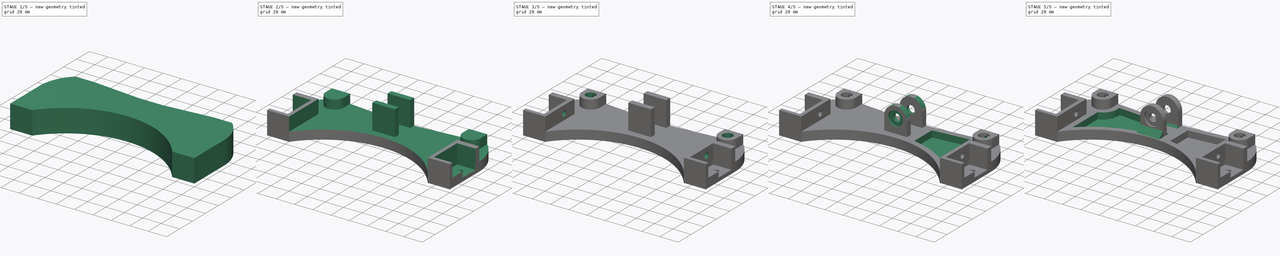
[diagram: build sequence overview — one tinted view per stage of 5, left to right]
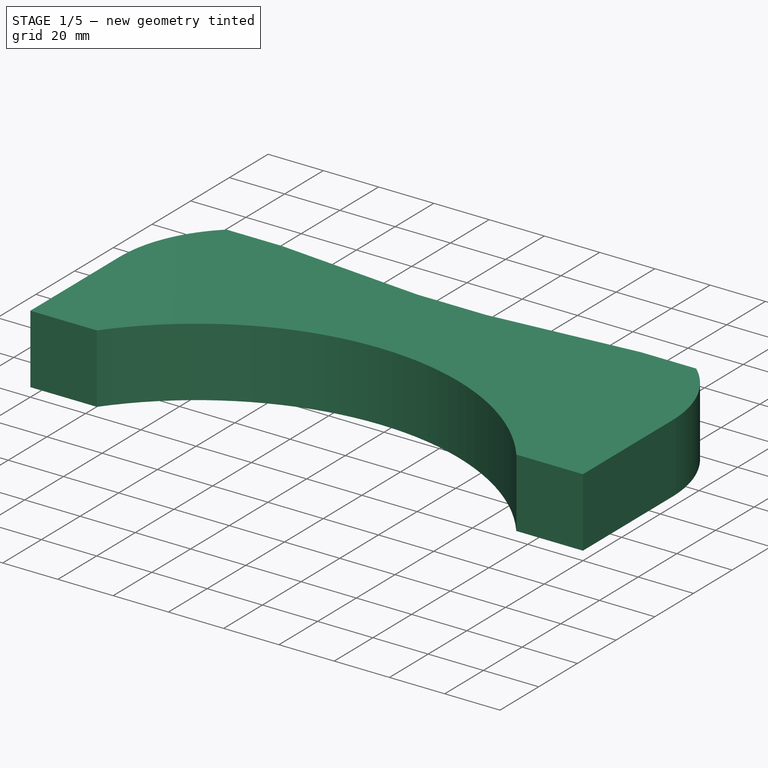
[diagram: stage 1 of 5 — iso view after this stage's code; geometry added in this stage tinted green]
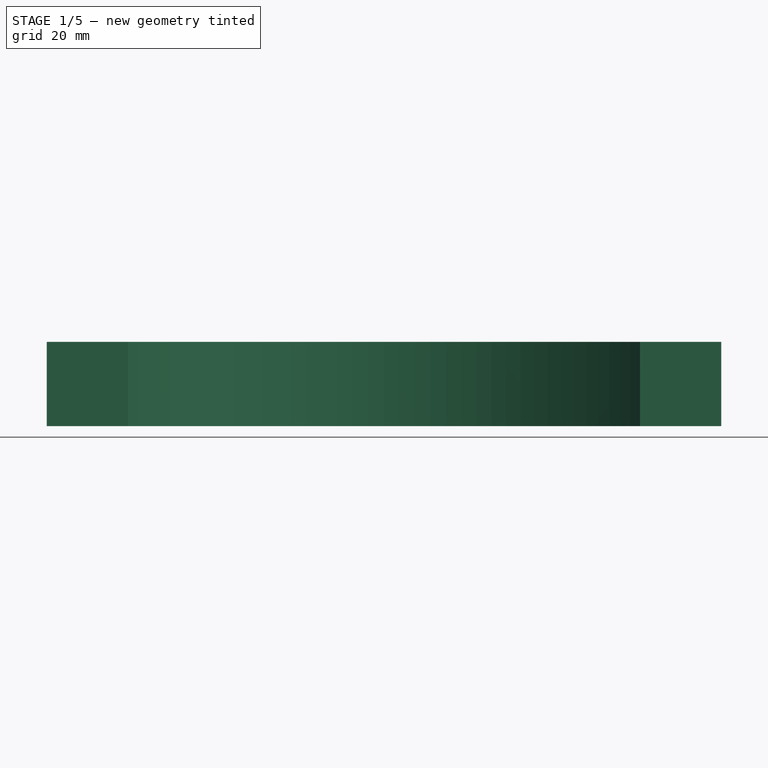
[diagram: stage 1 of 5 — front view after this stage's code; geometry added in this stage tinted green]
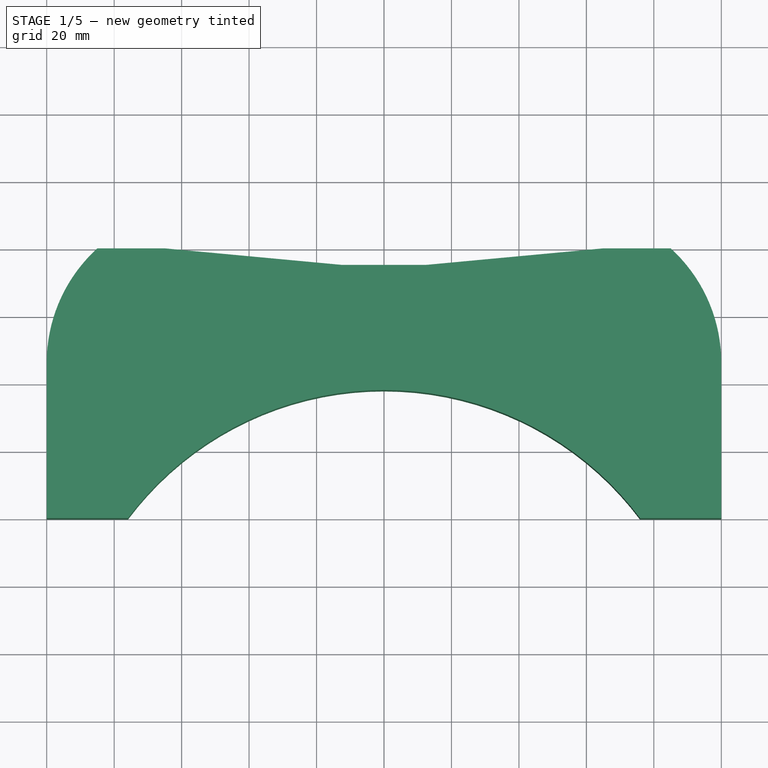
[diagram: stage 1 of 5 — top view after this stage's code; geometry added in this stage tinted green]
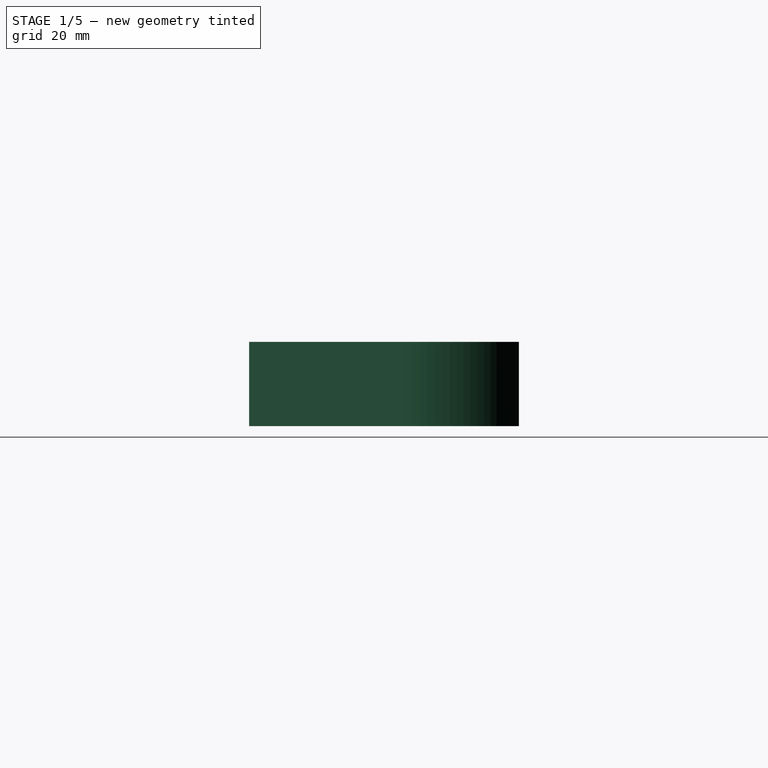
[diagram: stage 1 of 5 — right view after this stage's code; geometry added in this stage tinted green]
FCSTD DOCUMENT
Label: Y_Bearing-4mmoffset
objects: Sketcher::SketchObject×18, PartDesign::Pocket×16, PartDesign::Mirrored×7, PartDesign::Pad×2, PartDesign::Chamfer×2, Part::Feature×1
note: 64 computed .brp shape members not serialized (recipe doc carries the construction recipe); baked Part::Feature solids carry a one-line shape summary decoded from their .brp

FEATURE [Sketcher::SketchObject] Sketch
  sketch-geometry (5):
    g0: LineSegment StartX=-100 StartY=0 StartZ=0 EndX=100 EndY=0 EndZ=0
    g1: LineSegment StartX=100 StartY=0 StartZ=0 EndX=100 EndY=80 EndZ=0
    g2: LineSegment StartX=100 StartY=80 StartZ=0 EndX=-100 EndY=80 EndZ=0
    g3: LineSegment StartX=-100 StartY=80 StartZ=0 EndX=-100 EndY=0 EndZ=0
    g4: GeomPoint [constr] X=0 Y=0 Z=0
  constraints (12):
    c: Coincident(g0,g1)
    c: Coincident(g1,g2)
    c: Coincident(g2,g3)
    c: Coincident(g3,g0)
    c: Horizontal(g0)
    c: Horizontal(g2)
    c: Vertical(g1)
    c: Vertical(g3)
    c: DistanceX(g0) = 200
    c: DistanceY(g1) = 80
    c: Symmetric(g0,g0,g4)
    c: Coincident(g4,g-1)
FEATURE [PartDesign::Pad] Pad
  Length = 25
  Length2 = 100
  Sketch = -> Sketch
  Type = 0
FEATURE [Sketcher::SketchObject] Sketch001
  ExternalGeometry = -> [Pad]
  Placement = pos=(0,0,25) rot=(0,0,1;0rad)
  Support = -> Pad [Face6]
  sketch-geometry (3):
    g0: ArcOfCircle CenterX=0 CenterY=-56.8001 CenterZ=0 NormalX=0 NormalY=0 NormalZ=1 Radius=94.8001 StartAngle=0.642447 EndAngle=2.49915
    g1: LineSegment StartX=-75.9 StartY=0 StartZ=0 EndX=75.9 EndY=0 EndZ=0
    g2: LineSegment [constr] StartX=0 StartY=38 StartZ=0 EndX=0 EndY=0 EndZ=0
  constraints (10):
    c: PointOnObject(g0,g-2)
    c: Coincident(g1,g0)
    c: Coincident(g1,g0)
    c: Horizontal(g1)
    c: PointOnObject(g0,g-3)
    c: PointOnObject(g2,g0)
    c: Coincident(g2,g-1)
    c: Vertical(g2)
    c: DistanceY(g2) = -38
    c: DistanceX(g0,g-3) = -24.1
FEATURE [PartDesign::Pocket] Pocket
  Length = 5
  Sketch = -> Sketch001
  Type = 1
FEATURE [Sketcher::SketchObject] Sketch002
  ExternalGeometry = -> [Pocket]
  Placement = pos=(0,0,25) rot=(0,0,1;0rad)
  Support = -> Pocket [Face5]
  sketch-geometry (3):
    g0: ArcOfCircle CenterX=54.1931 CenterY=46.1 CenterZ=0 NormalX=0 NormalY=0 NormalZ=1 Radius=45.8069 StartAngle=6.28318 EndAngle=7.11635
    g1: LineSegment StartX=85 StartY=80 StartZ=0 EndX=100 EndY=80 EndZ=0
    g2: LineSegment StartX=100 StartY=80 StartZ=0 EndX=100 EndY=46.1 EndZ=0
  constraints (9):
    c: Coincident(g0,g1)
    c: Coincident(g1,g2)
    c: Coincident(g2,g0)
    c: Vertical(g2)
    c: Tangent(g2,g0)
    c: Horizontal(g1)
    c: DistanceX(g1) = 15
    c: Coincident(g1,g-3)
    c: DistanceY(g0,g-3) = -46.1
FEATURE [PartDesign::Pocket] Pocket001
  Length = 25
  Sketch = -> Sketch002
  Type = 0
FEATURE [PartDesign::Mirrored] Mirrored
  Originals = -> [Pocket001]
  StdMirrorPlane = YZ
FEATURE [Sketcher::SketchObject] Sketch003
  ExternalGeometry = -> [Mirrored]
  Placement = pos=(0,0,25) rot=(0,0,1;0rad)
  Support = -> Mirrored [Face4]
  sketch-geometry (4):
    g0: LineSegment StartX=-65 StartY=80 StartZ=0 EndX=-12.45 EndY=75.1 EndZ=0
    g1: LineSegment StartX=-12.45 StartY=75.1 StartZ=0 EndX=12.45 EndY=75.1 EndZ=0
    g2: LineSegment StartX=12.45 StartY=75.1 StartZ=0 EndX=65 EndY=80 EndZ=0
    g3: LineSegment StartX=65 StartY=80 StartZ=0 EndX=-65 EndY=80 EndZ=0
  constraints (12):
    c: Coincident(g0,g1)
    c: Horizontal(g1)
    c: Coincident(g1,g2)
    c: Coincident(g2,g3)
    c: Coincident(g3,g0)
    c: Horizontal(g3)
    c: Equal(g0,g2)
    c: PointOnObject(g0,g-3)
    c: Symmetric(g1,g0,g-2)
    c: DistanceY(g0,g0) = 4.9
    c: DistanceX(g1) = 24.9
    c: DistanceX(g2,g-3) = 20
FEATURE [PartDesign::Pocket] Pocket002
  Length = 5
  Sketch = -> Sketch003
  Type = 1
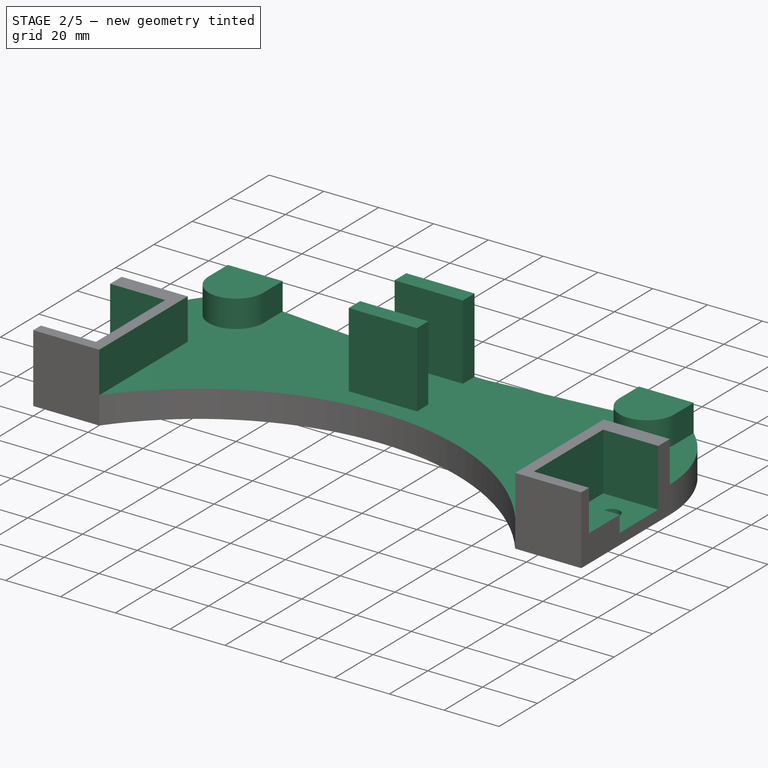
[diagram: stage 2 of 5 — iso view after this stage's code; geometry added in this stage tinted green]
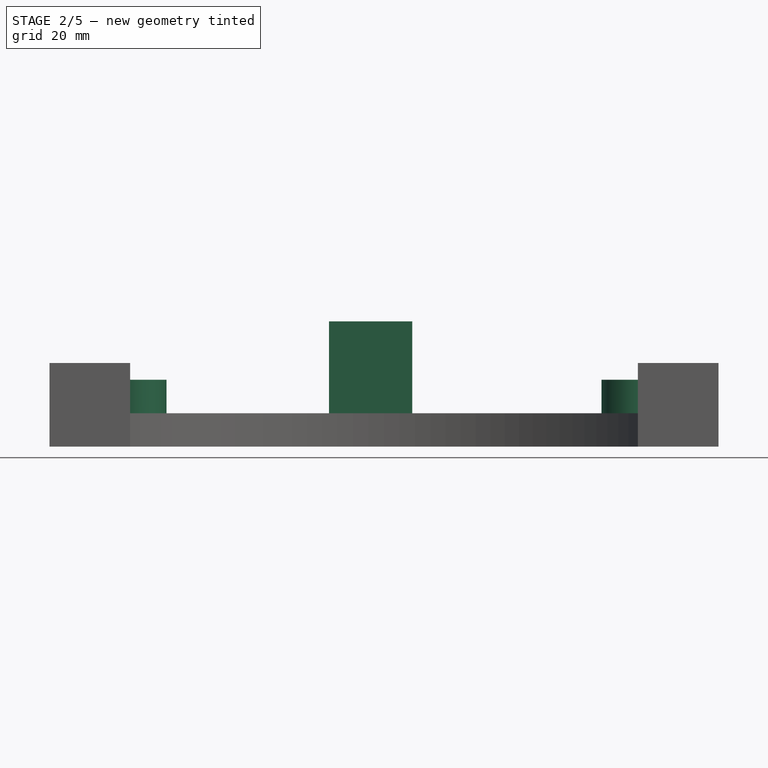
[diagram: stage 2 of 5 — front view after this stage's code; geometry added in this stage tinted green]
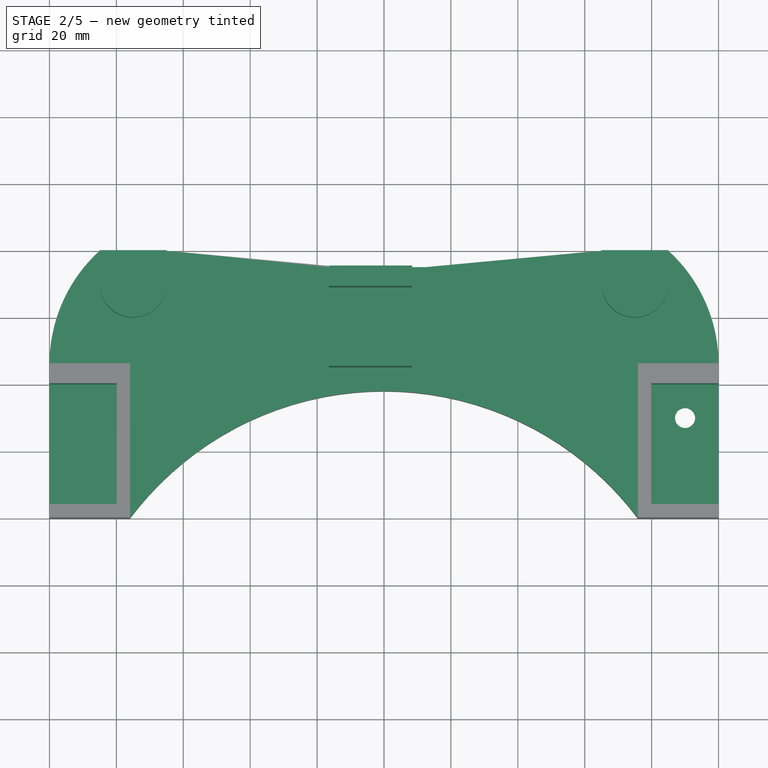
[diagram: stage 2 of 5 — top view after this stage's code; geometry added in this stage tinted green]
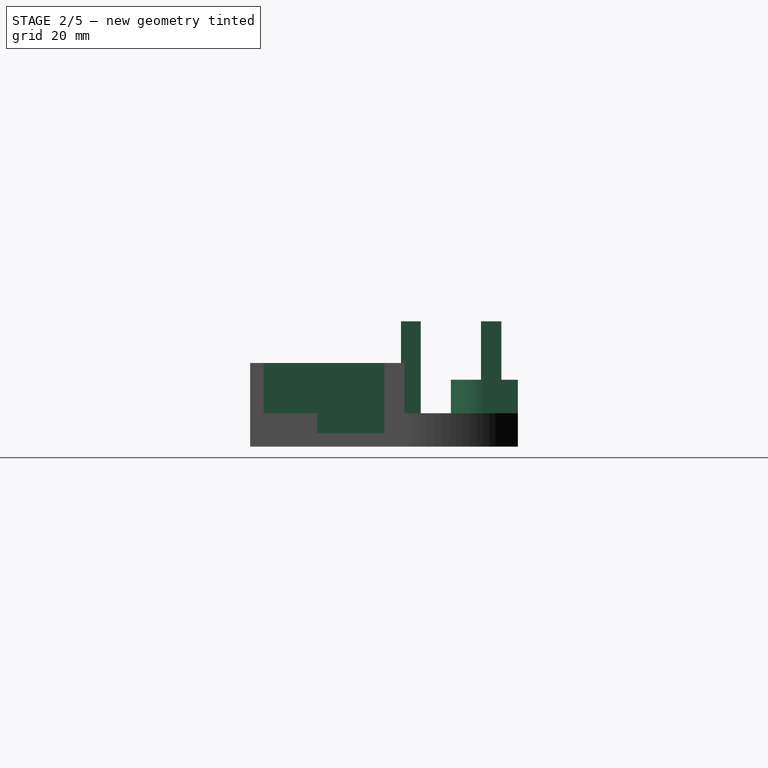
[diagram: stage 2 of 5 — right view after this stage's code; geometry added in this stage tinted green]
FEATURE [Sketcher::SketchObject] Sketch004
  ExternalGeometry = -> [Pocket002]
  Placement = pos=(0,0,25) rot=(0,0,1;0rad)
  Support = -> Pocket002 [Face4]
  sketch-geometry (16):
    g0: LineSegment StartX=-101 StartY=81 StartZ=0 EndX=-85 EndY=81 EndZ=0
    g1: LineSegment StartX=101 StartY=81 StartZ=0 EndX=101 EndY=46.1 EndZ=0
    g2: LineSegment StartX=75.9 StartY=0 StartZ=0 EndX=-75.9 EndY=0 EndZ=0
    g3: LineSegment StartX=-101 StartY=46.1 StartZ=0 EndX=-101 EndY=81 EndZ=0
    g4: LineSegment StartX=-101 StartY=46.1 StartZ=0 EndX=-75.9 EndY=46.1 EndZ=0
    g5: LineSegment StartX=-75.9 StartY=46.1 StartZ=0 EndX=-75.9 EndY=0 EndZ=0
    g6: LineSegment StartX=101 StartY=46.1 StartZ=0 EndX=75.9 EndY=46.1 EndZ=0
    g7: LineSegment StartX=75.9 StartY=46.1 StartZ=0 EndX=75.9 EndY=0 EndZ=0
    g8: LineSegment StartX=-85 StartY=81 StartZ=0 EndX=-85 EndY=70 EndZ=0
    g9: ArcOfCircle CenterX=-75 CenterY=70 CenterZ=0 NormalX=0 NormalY=0 NormalZ=1 Radius=10 StartAngle=3.14159 EndAngle=6.28319
    g10: LineSegment StartX=-65 StartY=70 StartZ=0 EndX=-65 EndY=81 EndZ=0
    g11: LineSegment StartX=65 StartY=81 StartZ=0 EndX=65 EndY=70 EndZ=0
    g12: ArcOfCircle CenterX=75 CenterY=70 CenterZ=0 NormalX=0 NormalY=0 NormalZ=1 Radius=10 StartAngle=3.14159 EndAngle=6.28319
    g13: LineSegment StartX=85 StartY=70 StartZ=0 EndX=85 EndY=81 EndZ=0
    g14: LineSegment StartX=85 StartY=81 StartZ=0 EndX=101 EndY=81 EndZ=0
    g15: LineSegment StartX=-65 StartY=81 StartZ=0 EndX=65 EndY=81 EndZ=0
  constraints (43):
    c: Coincident(g14,g1)
    c: Coincident(g3,g0)
    c: Horizontal(g0)
    c: Horizontal(g2)
    c: Vertical(g1)
    c: Vertical(g3)
    c: Coincident(g4,g5)
    c: Horizontal(g4)
    c: Vertical(g5)
    c: Coincident(g6,g7)
    c: Horizontal(g6)
    c: Vertical(g7)
    c: Coincident(g2,g5)
    c: Coincident(g3,g4)
    c: Coincident(g1,g6)
    c: Coincident(g2,g7)
    c: Equal(g5,g7)
    c: Symmetric(g2,g2,g-2)
    c: Equal(g4,g6)
    c: Vertical(g8)
    c: Tangent(g8,g9)
    c: Tangent(g9,g10)
    c: Vertical(g10)
    c: Vertical(g11)
    c: Tangent(g11,g12)
    c: Tangent(g12,g13)
    c: Vertical(g13)
    c: Coincident(g15,g11)
    c: Coincident(g14,g13)
    c: Tangent(g0,g14)
    c: Coincident(g0,g8)
    c: Coincident(g15,g10)
    c: Tangent(g0,g15)
    c: Equal(g0,g14)
    c: PointOnObject(g-4,g8)
    c: PointOnObject(g-4,g10)
    c: Equal(g11,g10)
    c: Equal(g12,g9)
    c: Coincident(g2,g-3)
    c: DistanceX(g3,g-3) = 1
    c: DistanceY(g-4,g0) = 1
    c: DistanceY(g-3,g3) = 46.1
    c: DistanceY(g-4,g8) = -10
FEATURE [PartDesign::Pocket] Pocket003
  Length = 15
  Sketch = -> Sketch004
  Type = 0
FEATURE [Sketcher::SketchObject] Sketch005
  ExternalGeometry = -> [Pocket003]
  Placement = pos=(100,0,0) rot=(0.57735,0.57735,0.57735;2.0944rad)
  Support = -> Pocket003 [Face9]
  sketch-geometry (6):
    g0: LineSegment StartX=4 StartY=26 StartZ=0 EndX=40.1 EndY=26 EndZ=0
    g1: LineSegment StartX=40.1 StartY=26 StartZ=0 EndX=40.1 EndY=4 EndZ=0
    g2: LineSegment StartX=40.1 StartY=4 StartZ=0 EndX=20 EndY=4 EndZ=0
    g3: LineSegment StartX=4 StartY=10 StartZ=0 EndX=4 EndY=26 EndZ=0
    g4: LineSegment StartX=4 StartY=10 StartZ=0 EndX=20 EndY=10 EndZ=0
    g5: LineSegment StartX=20 StartY=10 StartZ=0 EndX=20 EndY=4 EndZ=0
  constraints (18):
    c: Coincident(g0,g1)
    c: Coincident(g1,g2)
    c: Coincident(g3,g0)
    c: Horizontal(g0)
    c: Horizontal(g2)
    c: Vertical(g1)
    c: Vertical(g3)
    c: Horizontal(g4)
    c: Coincident(g4,g5)
    c: Vertical(g5)
    c: Coincident(g5,g2)
    c: Coincident(g4,g3)
    c: DistanceY(g1,g-3) = -4
    c: DistanceX(g0,g-4) = 6
    c: DistanceX(g2) = -20.1
    c: DistanceY(g5) = -6
    c: DistanceX(g0,g-4) = -4
    c: DistanceY(g-4,g0) = 1
FEATURE [PartDesign::Pocket] Pocket004
  Length = 20.1
  Sketch = -> Sketch005
  Type = 0
FEATURE [PartDesign::Mirrored] Mirrored001
  Originals = -> [Pocket004]
  StdMirrorPlane = YZ
FEATURE [Sketcher::SketchObject] Sketch006
  Placement = pos=(0,0,25) rot=(0,0,1;0rad)
  Support = -> Mirrored001 [Face16]
  sketch-geometry (4):
    g0: LineSegment StartX=-90 StartY=58 StartZ=0 EndX=90 EndY=58 EndZ=0
    g1: LineSegment StartX=90 StartY=58 StartZ=0 EndX=90 EndY=83 EndZ=0
    g2: LineSegment StartX=90 StartY=83 StartZ=0 EndX=-90 EndY=83 EndZ=0
    g3: LineSegment StartX=-90 StartY=83 StartZ=0 EndX=-90 EndY=58 EndZ=0
  constraints (12):
    c: Coincident(g0,g1)
    c: Coincident(g1,g2)
    c: Coincident(g2,g3)
    c: Coincident(g3,g0)
    c: Horizontal(g0)
    c: Horizontal(g2)
    c: Vertical(g1)
    c: Vertical(g3)
    c: Symmetric(g0,g0,g-2)
    c: DistanceX(g2) = -180
    c: DistanceY(g1) = 25
    c: DistanceY(g0) = 58
FEATURE [PartDesign::Pocket] Pocket005
  Length = 5
  Sketch = -> Sketch006
  Type = 0
FEATURE [Sketcher::SketchObject] Sketch007
  ExternalGeometry = -> [Pocket005]
  Placement = pos=(0,0,10) rot=(0,0,1;0rad)
  Support = -> Pocket005 [Face14]
  sketch-geometry (8):
    g0: LineSegment StartX=-16.45 StartY=75.1 StartZ=0 EndX=8.45 EndY=75.1 EndZ=0
    g1: LineSegment StartX=8.45 StartY=75.1 StartZ=0 EndX=8.45 EndY=69 EndZ=0
    g2: LineSegment StartX=8.45 StartY=69 StartZ=0 EndX=-16.45 EndY=69 EndZ=0
    g3: LineSegment StartX=-16.45 StartY=69 StartZ=0 EndX=-16.45 EndY=75.1 EndZ=0
    g4: LineSegment StartX=-16.45 StartY=51 StartZ=0 EndX=8.45 EndY=51 EndZ=0
    g5: LineSegment StartX=8.45 StartY=51 StartZ=0 EndX=8.45 EndY=45.1 EndZ=0
    g6: LineSegment StartX=8.45 StartY=45.1 StartZ=0 EndX=-16.45 EndY=45.1 EndZ=0
    g7: LineSegment StartX=-16.45 StartY=45.1 StartZ=0 EndX=-16.45 EndY=51 EndZ=0
  constraints (24):
    c: Coincident(g0,g1)
    c: Coincident(g1,g2)
    c: Coincident(g2,g3)
    c: Coincident(g3,g0)
    c: Horizontal(g0)
    c: Horizontal(g2)
    c: Vertical(g1)
    c: Vertical(g3)
    c: DistanceX(g0) = 24.9
    c: DistanceY(g1) = -6.1
    c: PointOnObject(g0,g-3)
    c: DistanceX(g1) = 8.45
    c: Coincident(g4,g5)
    c: Coincident(g5,g6)
    c: Coincident(g6,g7)
    c: Coincident(g7,g4)
    c: Horizontal(g4)
    c: Horizontal(g6)
    c: Vertical(g5)
    c: Vertical(g7)
    c: Equal(g4,g2)
    c: DistanceY(g7) = 5.9
    c: DistanceY(g2,g4) = -18
    c: Tangent(g7,g3)
FEATURE [PartDesign::Pad] Pad001
  Length = 27.45
  Length2 = 100
  Sketch = -> Sketch007
  Type = 0
FEATURE [Sketcher::SketchObject] Sketch008
  ExternalGeometry = -> [Pad001]
  Placement = pos=(0,0,4) rot=(0,0,1;0rad)
  Support = -> Pad001 [Face30]
  sketch-geometry (1):
    g0: Circle CenterX=90 CenterY=30.1 CenterZ=0 NormalX=0 NormalY=0 NormalZ=1 Radius=3
  constraints (3):
    c: DistanceY(g-3,g0) = 30.1
    c: DistanceX(g0,g-3) = 10
    c: Radius(g0) = 3
FEATURE [PartDesign::Pocket] Pocket006
  Length = 5
  Sketch = -> Sketch008
  Type = 1
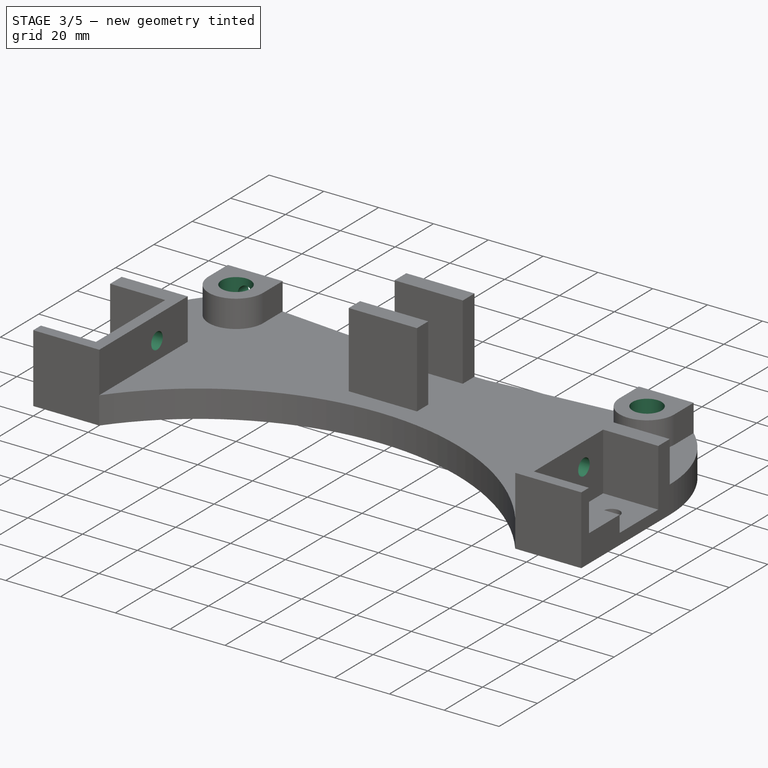
[diagram: stage 3 of 5 — iso view after this stage's code; geometry added in this stage tinted green]
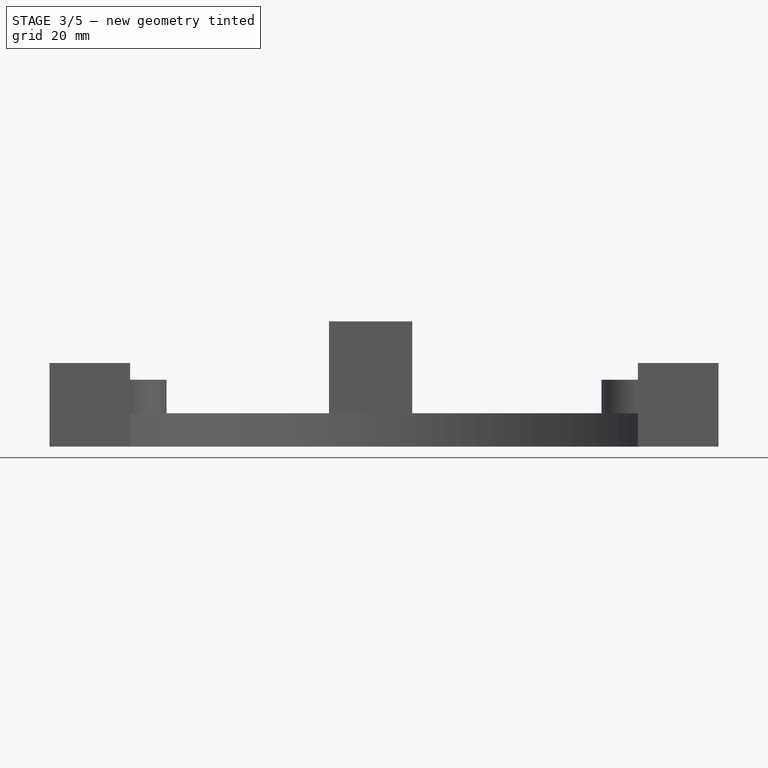
[diagram: stage 3 of 5 — front view after this stage's code; geometry added in this stage tinted green]
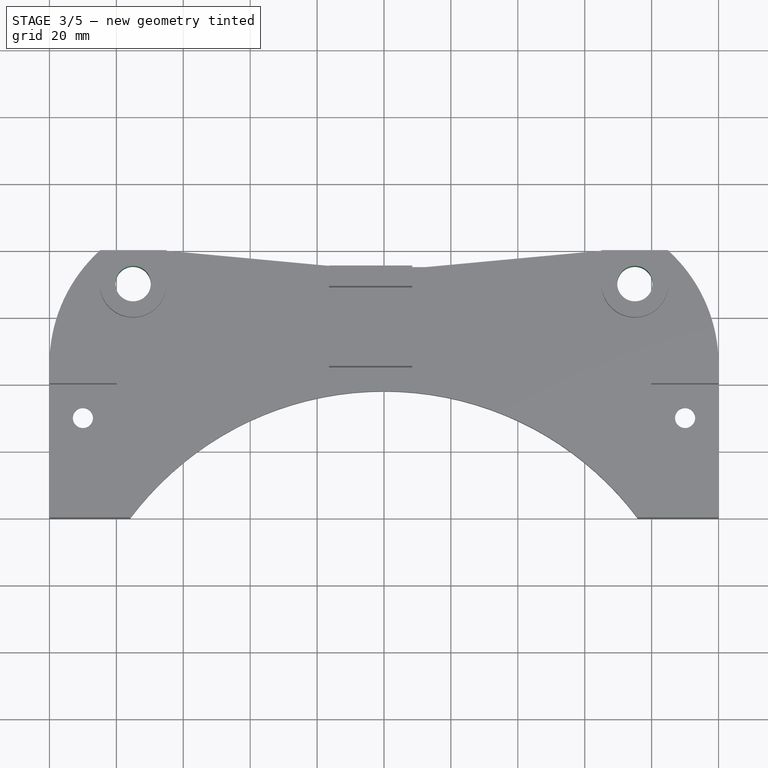
[diagram: stage 3 of 5 — top view after this stage's code; geometry added in this stage tinted green]
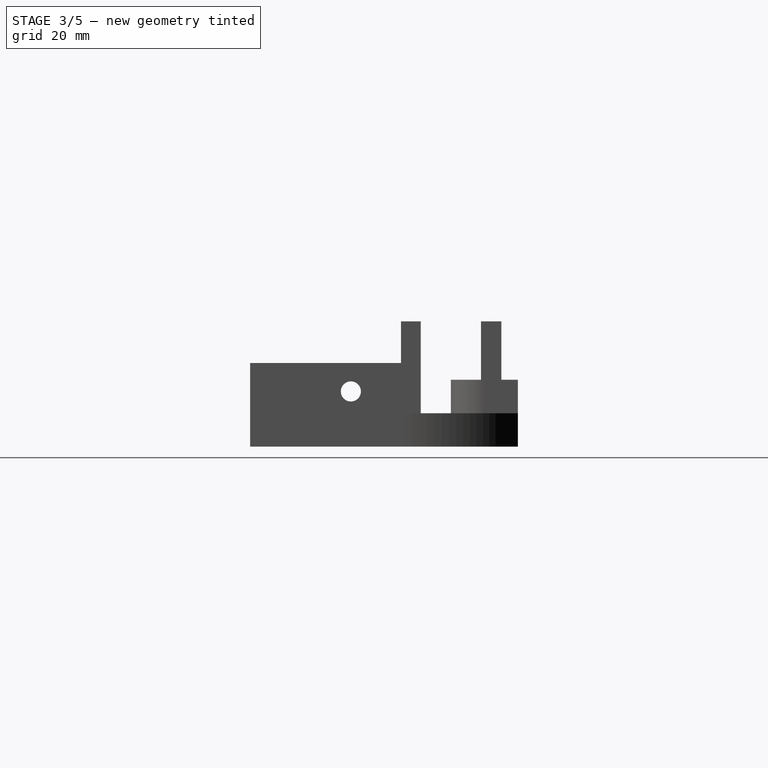
[diagram: stage 3 of 5 — right view after this stage's code; geometry added in this stage tinted green]
FEATURE [PartDesign::Mirrored] Mirrored002
  Originals = -> [Pocket006]
  StdMirrorPlane = YZ
FEATURE [Sketcher::SketchObject] Sketch009
  ExternalGeometry = -> [Mirrored002]
  Placement = pos=(79.9,0,0) rot=(0.57735,0.57735,0.57735;2.0944rad)
  Support = -> Mirrored002 [Face52]
  sketch-geometry (1):
    g0: Circle CenterX=30.1 CenterY=16.5 CenterZ=0 NormalX=0 NormalY=0 NormalZ=1 Radius=3
  constraints (3):
    c: Radius(g0) = 3
    c: DistanceY(g-1,g0) = 16.5
    c: DistanceX(g-4,g0) = 30.1
FEATURE [PartDesign::Pocket] Pocket007
  Length = 5
  Sketch = -> Sketch009
  Type = 1
FEATURE [Sketcher::SketchObject] Sketch010
  ExternalGeometry = -> [Pocket007]
  Placement = pos=(0,0,20) rot=(0,0,1;0rad)
  Support = -> Pocket007 [Face35]
  sketch-geometry (1):
    g0: Circle CenterX=-75 CenterY=70 CenterZ=0 NormalX=0 NormalY=0 NormalZ=1 Radius=5.3
  constraints (2):
    c: Coincident(g0,g-3)
    c: Radius(g0) = 5.3
FEATURE [PartDesign::Pocket] Pocket008
  Length = 5
  Sketch = -> Sketch010
  Type = 1
FEATURE [PartDesign::Mirrored] Mirrored003
  Originals = -> [Pocket008]
  StdMirrorPlane = YZ
FEATURE [Sketcher::SketchObject] Sketch011
  ExternalGeometry = -> [Mirrored003]
  Placement = pos=(0,80,0) rot=(0,0.707107,0.707107;3.14159rad)
  Support = -> Mirrored003 [Face5]
  sketch-geometry (2):
    g0: Circle CenterX=75 CenterY=15 CenterZ=0 NormalX=0 NormalY=0 NormalZ=1 Radius=2.6
    g1: LineSegment [constr] StartX=75 StartY=20 StartZ=0 EndX=75 EndY=15 EndZ=0
  constraints (5):
    c: Coincident(g1,g0)
    c: Radius(g0) = 2.6
    c: Symmetric(g-3,g-3,g1)
    c: Vertical(g1)
    c: DistanceY(g1) = -5
FEATURE [PartDesign::Pocket] Pocket009
  Length = 7
  Sketch = -> Sketch011
  Type = 0
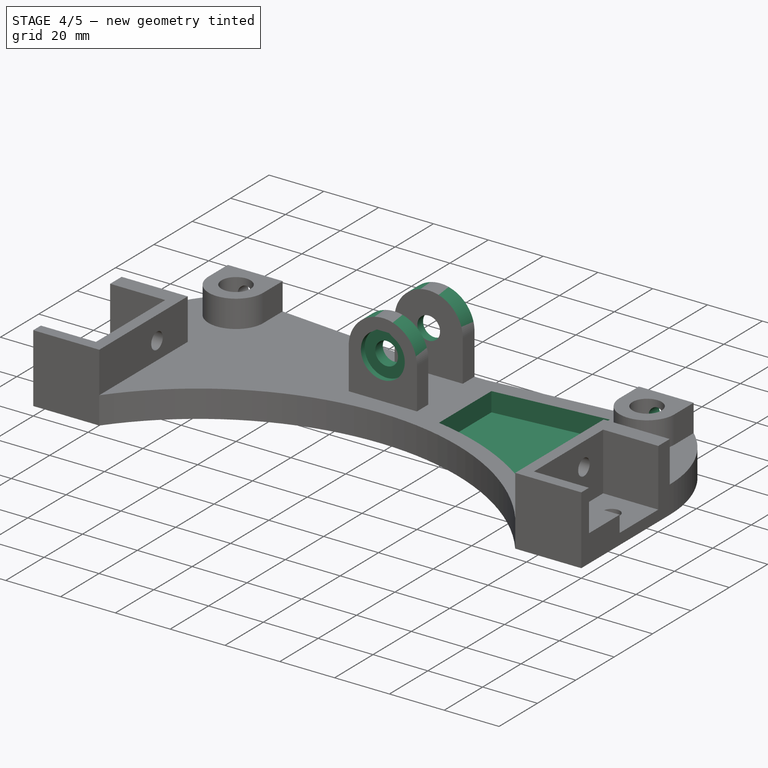
[diagram: stage 4 of 5 — iso view after this stage's code; geometry added in this stage tinted green]
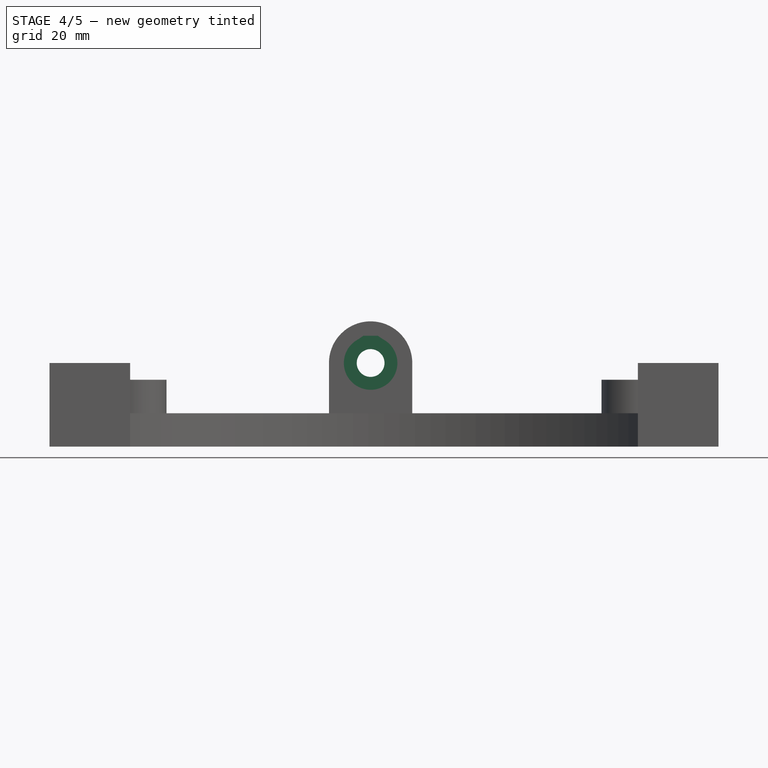
[diagram: stage 4 of 5 — front view after this stage's code; geometry added in this stage tinted green]
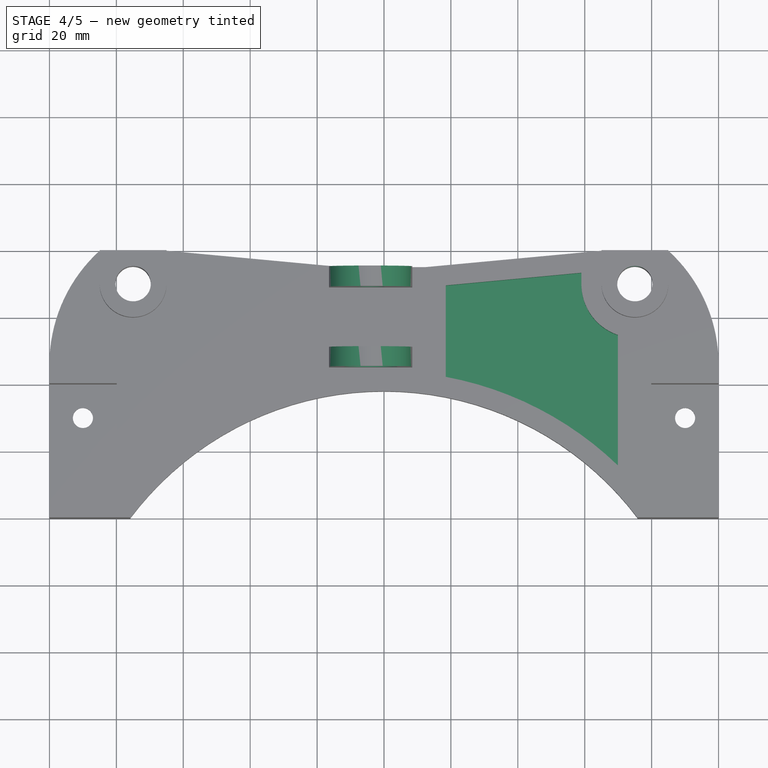
[diagram: stage 4 of 5 — top view after this stage's code; geometry added in this stage tinted green]
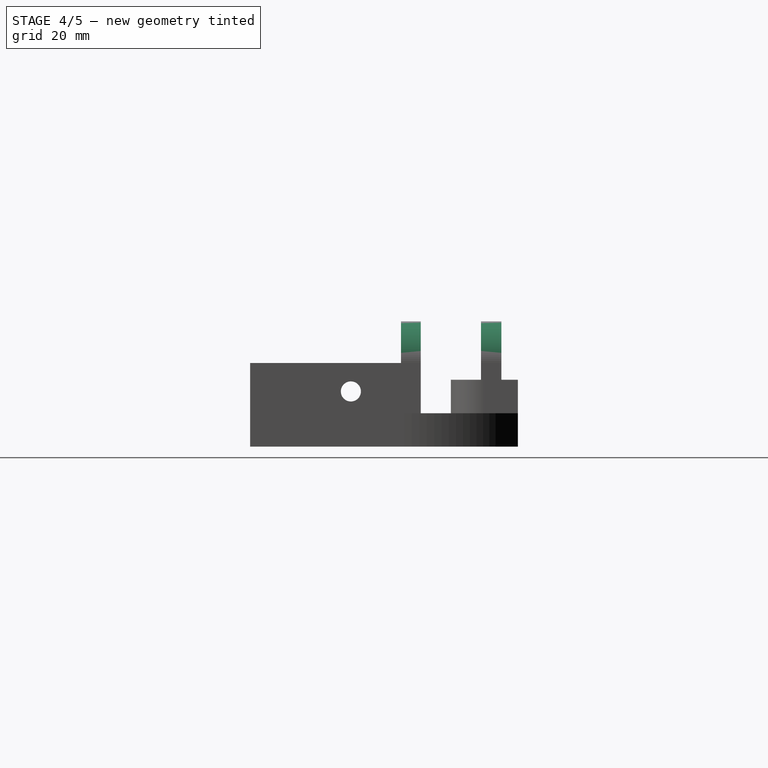
[diagram: stage 4 of 5 — right view after this stage's code; geometry added in this stage tinted green]
FEATURE [PartDesign::Mirrored] Mirrored004
  Originals = -> [Pocket009]
  StdMirrorPlane = YZ
FEATURE [Sketcher::SketchObject] Sketch016
  ExternalGeometry = -> [Mirrored004]
  Placement = pos=(0,45.1,0) rot=(1,0,0;1.5708rad)
  Support = -> Mirrored004 [Face25]
  sketch-geometry (6):
    g0: LineSegment StartX=-17.45 StartY=38.45 StartZ=0 EndX=9.45 EndY=38.45 EndZ=0
    g1: LineSegment StartX=9.45 StartY=38.45 StartZ=0 EndX=9.45 EndY=25 EndZ=0
    g2: LineSegment StartX=9.45 StartY=25 StartZ=0 EndX=8.45 EndY=25 EndZ=0
    g3: LineSegment StartX=-17.45 StartY=25 StartZ=0 EndX=-17.45 EndY=38.45 EndZ=0
    g4: LineSegment StartX=-16.45 StartY=25 StartZ=0 EndX=-17.45 EndY=25 EndZ=0
    g5: ArcOfCircle CenterX=-4 CenterY=25 CenterZ=0 NormalX=0 NormalY=0 NormalZ=1 Radius=12.45 StartAngle=0 EndAngle=3.14159
  constraints (19):
    c: Coincident(g0,g1)
    c: Coincident(g1,g2)
    c: Coincident(g4,g3)
    c: Coincident(g3,g0)
    c: Horizontal(g0)
    c: Horizontal(g2)
    c: Vertical(g1)
    c: Vertical(g3)
    c: Tangent(g2,g4)
    c: Coincident(g5,g4)
    c: Coincident(g5,g2)
    c: Perpendicular(g4,g5)
    c: Equal(g3,g1)
    c: Equal(g2,g4)
    c: DistanceY(g0,g-3) = -1
    c: PointOnObject(g2,g-5)
    c: Tangent(g5,g-3)
    c: PointOnObject(g4,g-4)
    c: DistanceX(g2) = -1
FEATURE [PartDesign::Pocket] Pocket010
  Length = 5
  Sketch = -> Sketch016
  Type = 1
FEATURE [Sketcher::SketchObject] Sketch012
  ExternalGeometry = -> [Mirrored004,Pocket010]
  Placement = pos=(0,45.1,0) rot=(1,0,0;1.5708rad)
  Support = -> Pocket010 [Face25]
  sketch-geometry (1):
    g0: Circle CenterX=-4 CenterY=25 CenterZ=0 NormalX=0 NormalY=0 NormalZ=1 Radius=4.15
  constraints (2):
    c: Coincident(g0,g-5)
    c: Radius(g0) = 4.15
FEATURE [PartDesign::Pocket] Pocket011
  Length = 5
  Sketch = -> Sketch012
  Type = 1
FEATURE [Sketcher::SketchObject] Sketch013
  ExternalGeometry = -> [Pocket011]
  Placement = pos=(0,45.1,0) rot=(1,0,0;1.5708rad)
  Support = -> Pocket011 [Face25]
  sketch-geometry (5):
    g0: ArcOfCircle CenterX=-4 CenterY=25 CenterZ=0 NormalX=0 NormalY=0 NormalZ=1 Radius=8 StartAngle=2.04524 EndAngle=7.37954
    g1: LineSegment StartX=-7.65474 StartY=32.1164 StartZ=0 EndX=-6.2 EndY=33.135 EndZ=0
    g2: LineSegment StartX=-6.2 StartY=33.135 StartZ=0 EndX=-1.8 EndY=33.135 EndZ=0
    g3: LineSegment StartX=-1.8 StartY=33.135 StartZ=0 EndX=-0.345265 EndY=32.1164 EndZ=0
    g4: LineSegment [constr] StartX=-7.65474 StartY=32.1164 StartZ=0 EndX=-0.345265 EndY=32.1164 EndZ=0
  constraints (14):
    c: Radius(g0) = 8
    c: Coincident(g-3,g0)
    c: Coincident(g1,g2)
    c: Horizontal(g2)
    c: Coincident(g2,g3)
    c: Equal(g3,g1)
    c: DistanceX(g2) = 4.4
    c: Coincident(g0,g1)
    c: Coincident(g0,g3)
    c: Horizontal(g4)
    c: Coincident(g4,g0)
    c: Coincident(g4,g0)
    c: DistanceY(g0,g1) = 8.135
    c: Angle(g1,g3) = 1.91986
FEATURE [PartDesign::Pocket] Pocket012
  Length = 2
  Sketch = -> Sketch013
  Type = 0
FEATURE [Sketcher::SketchObject] Sketch013001  label="Sketch017"
  ExternalGeometry = -> [Pocket012]
  Placement = pos=(0,75.1,0) rot=(0,0.707107,0.707107;3.14159rad)
  Support = -> Pocket012 [Face7]
  sketch-geometry (5):
    g0: ArcOfCircle CenterX=4 CenterY=25 CenterZ=0 NormalX=0 NormalY=0 NormalZ=1 Radius=8 StartAngle=2.04524 EndAngle=7.37954
    g1: LineSegment StartX=0.345265 StartY=32.1164 StartZ=0 EndX=1.8 EndY=33.135 EndZ=0
    g2: LineSegment StartX=1.8 StartY=33.135 StartZ=0 EndX=6.2 EndY=33.135 EndZ=0
    g3: LineSegment StartX=6.2 StartY=33.135 StartZ=0 EndX=7.65474 EndY=32.1164 EndZ=0
    g4: LineSegment [constr] StartX=0.345265 StartY=32.1164 StartZ=0 EndX=7.65474 EndY=32.1164 EndZ=0
  constraints (14):
    c: Radius(g0) = 8
    c: Coincident(g1,g2)
    c: Horizontal(g2)
    c: Coincident(g2,g3)
    c: Equal(g3,g1)
    c: DistanceX(g2) = 4.4
    c: Coincident(g0,g1)
    c: Coincident(g0,g3)
    c: Horizontal(g4)
    c: Coincident(g4,g0)
    c: Coincident(g4,g0)
    c: DistanceY(g0,g1) = 8.135
    c: Angle(g1,g3) = 1.91986
    c: Coincident(g0,g-3)
FEATURE [PartDesign::Pocket] Pocket013
  Length = 3.1
  Sketch = -> Sketch013001
  Type = 0
FEATURE [Sketcher::SketchObject] Sketch015
  ExternalGeometry = -> [Pocket013]
  Placement = pos=(0,0,10) rot=(0,0,1;0rad)
  Support = -> Pocket013 [Face3]
  sketch-geometry (7):
    g0: LineSegment StartX=18.45 StartY=42.2971 StartZ=0 EndX=18.45 EndY=69.6334 EndZ=0
    g1: LineSegment StartX=18.45 StartY=69.6334 StartZ=0 EndX=59 EndY=73.4145 EndZ=0
    g2: LineSegment StartX=59 StartY=73.4145 StartZ=0 EndX=59 EndY=70 EndZ=0
    g3: ArcOfCircle CenterX=75 CenterY=70 CenterZ=0 NormalX=0 NormalY=0 NormalZ=1 Radius=16 StartAngle=3.14159 EndAngle=4.38798
    g4: LineSegment StartX=69.9 StartY=54.8346 StartZ=0 EndX=69.9 EndY=15.8267 EndZ=0
    g5: ArcOfCircle CenterX=0 CenterY=-56.8001 CenterZ=0 NormalX=0 NormalY=0 NormalZ=1 Radius=100.8 StartAngle=0.804528 EndAngle=1.38672
    g6: LineSegment [constr] StartX=18.45 StartY=42.2971 StartZ=0 EndX=17.3518 EndY=36.3985 EndZ=0
  constraints (21):
    c: DistanceX(g0) = 18.45
    c: Vertical(g0)
    c: Vertical(g4)
    c: Vertical(g2)
    c: Coincident(g3,g4)
    c: Coincident(g3,g2)
    c: Coincident(g2,g1)
    c: Tangent(g3,g2)
    c: Coincident(g5,g4)
    c: Coincident(g5,g0)
    c: Coincident(g1,g0)
    c: Coincident(g6,g0)
    c: Perpendicular(g6,g5)
    c: Distance(g6) = 6
    c: Coincident(g5,g-4)
    c: Coincident(g-6,g3)
    c: DistanceX(g1,g-6) = 6
    c: DistanceX(g3,g-5) = 6
    c: PointOnObject(g6,g-4)
    c: Parallel(g-3,g1)
    c: Distance(g0,g-3) = 6
FEATURE [PartDesign::Pocket] Pocket014
  Length = 7
  Sketch = -> Sketch015
  Type = 0
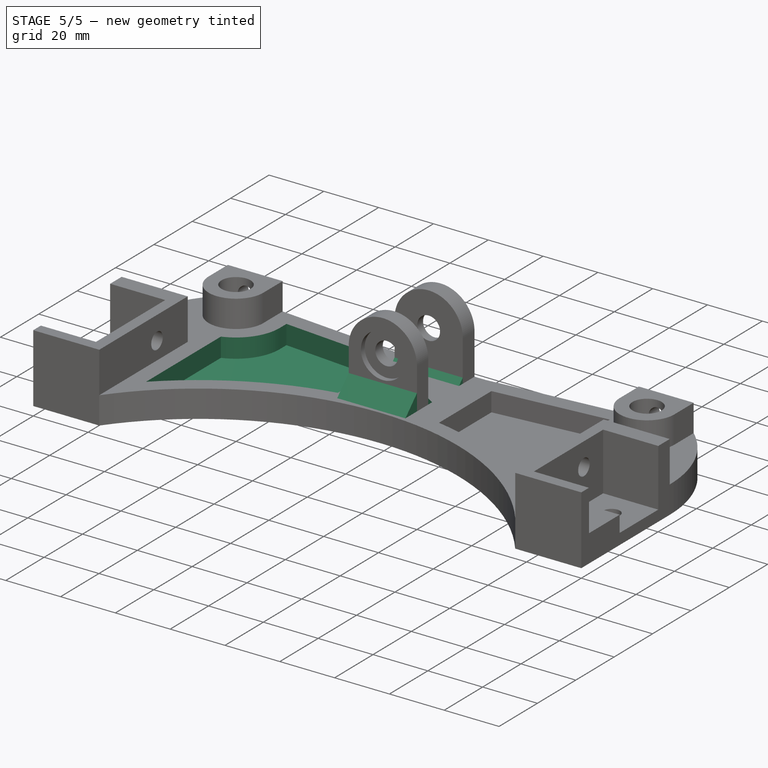
[diagram: stage 5 of 5 — iso view after this stage's code; geometry added in this stage tinted green]
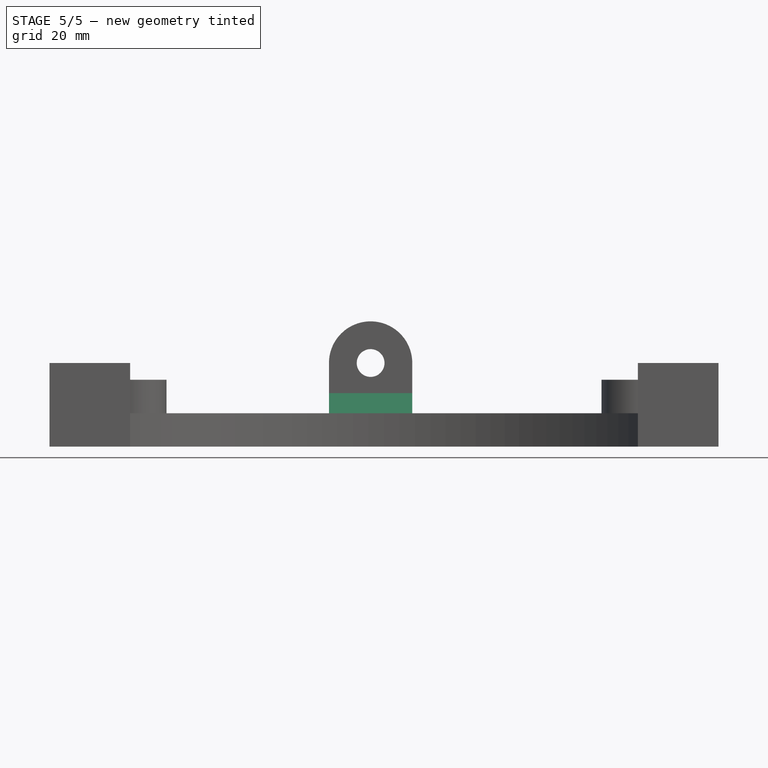
[diagram: stage 5 of 5 — front view after this stage's code; geometry added in this stage tinted green]
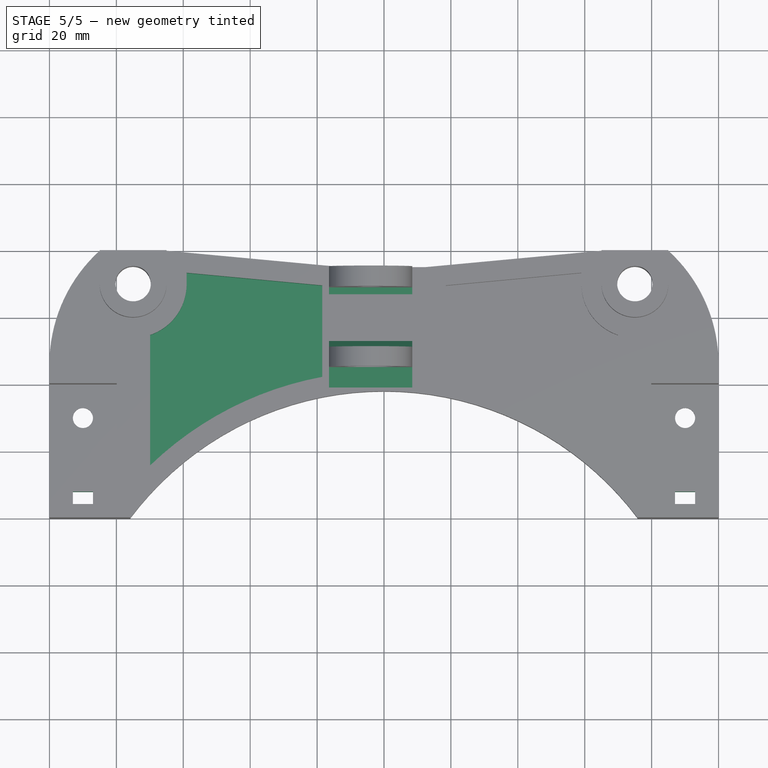
[diagram: stage 5 of 5 — top view after this stage's code; geometry added in this stage tinted green]
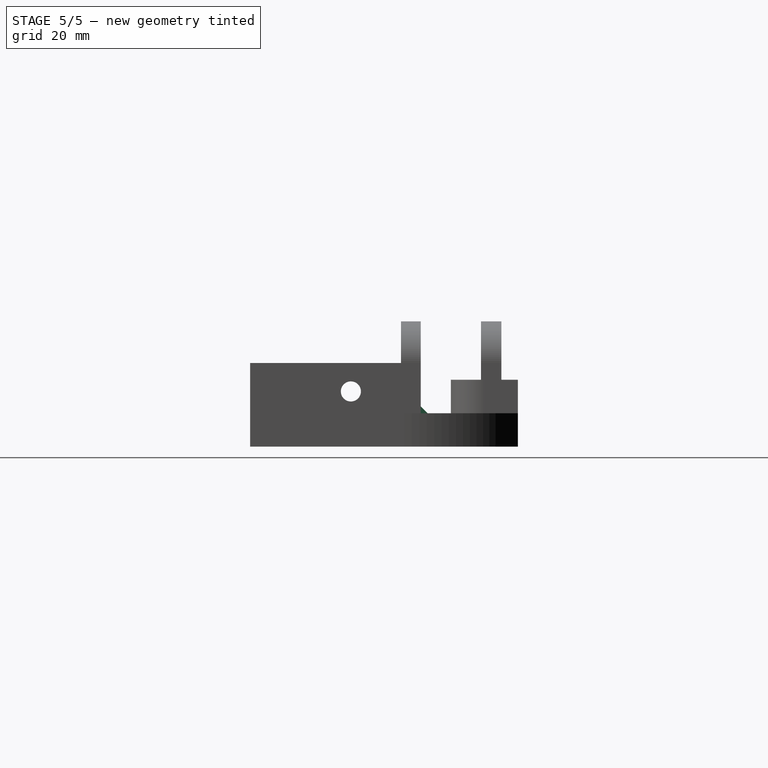
[diagram: stage 5 of 5 — right view after this stage's code; geometry added in this stage tinted green]
FEATURE [PartDesign::Mirrored] Mirrored005
  Originals = -> [Pocket014]
  StdMirrorPlane = YZ
FEATURE [Sketcher::SketchObject] Sketch013002  label="Sketch018"
  ExternalGeometry = -> [Mirrored005]
  Placement = pos=(0,0,10) rot=(0,0,1;0rad)
  Support = -> Mirrored005 [Face81]
  sketch-geometry (4):
    g0: LineSegment StartX=87 StartY=4 StartZ=0 EndX=93 EndY=4 EndZ=0
    g1: LineSegment StartX=93 StartY=4 StartZ=0 EndX=93 EndY=8 EndZ=0
    g2: LineSegment StartX=93 StartY=8 StartZ=0 EndX=87 EndY=8 EndZ=0
    g3: LineSegment StartX=87 StartY=8 StartZ=0 EndX=87 EndY=4 EndZ=0
  constraints (12):
    c: Coincident(g0,g1)
    c: Coincident(g1,g2)
    c: Coincident(g2,g3)
    c: Coincident(g3,g0)
    c: Horizontal(g0)
    c: Horizontal(g2)
    c: Vertical(g1)
    c: Vertical(g3)
    c: DistanceY(g3) = -4
    c: DistanceX(g2) = -6
    c: PointOnObject(g-3,g0)
    c: DistanceX(g0,g-3) = 7
FEATURE [PartDesign::Pocket] Pocket015
  Length = 5
  Sketch = -> Sketch013002
  Type = 1
FEATURE [PartDesign::Mirrored] Mirrored006
  Originals = -> [Pocket015]
  StdMirrorPlane = YZ
FEATURE [PartDesign::Chamfer] Chamfer
  Base = -> Mirrored006 [Edge32,Edge35]
  Size = 2
FEATURE [PartDesign::Chamfer] Chamfer001
  Base = -> Chamfer [Edge38]
  Size = 6
FEATURE [Part::Feature] Chamfer001001  label="PartRefine"
  shape: bbox 200 x 80 x 37.45 mm, 92 faces (baked)
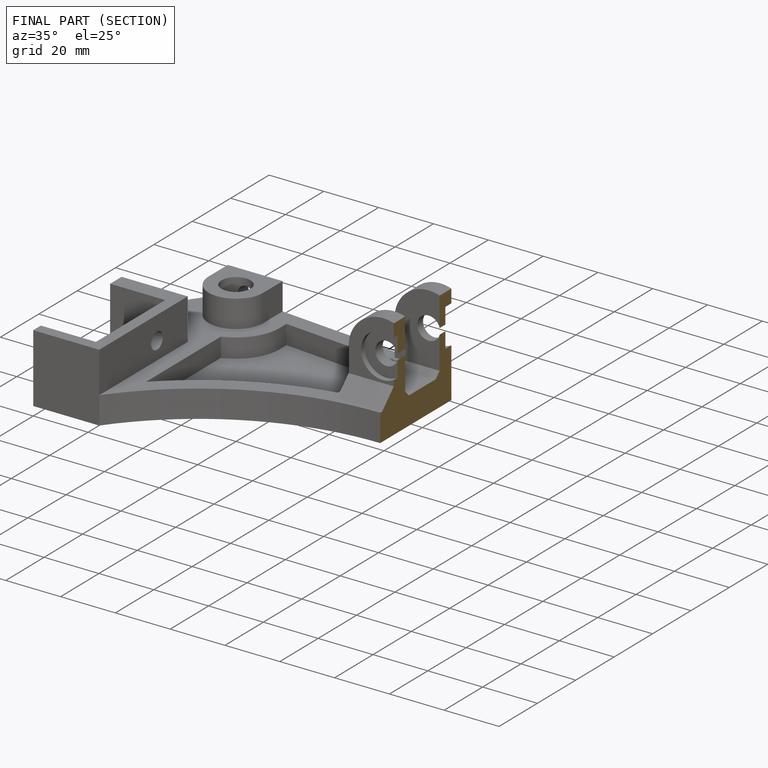
[diagram: finished part — half-section view (interior)]
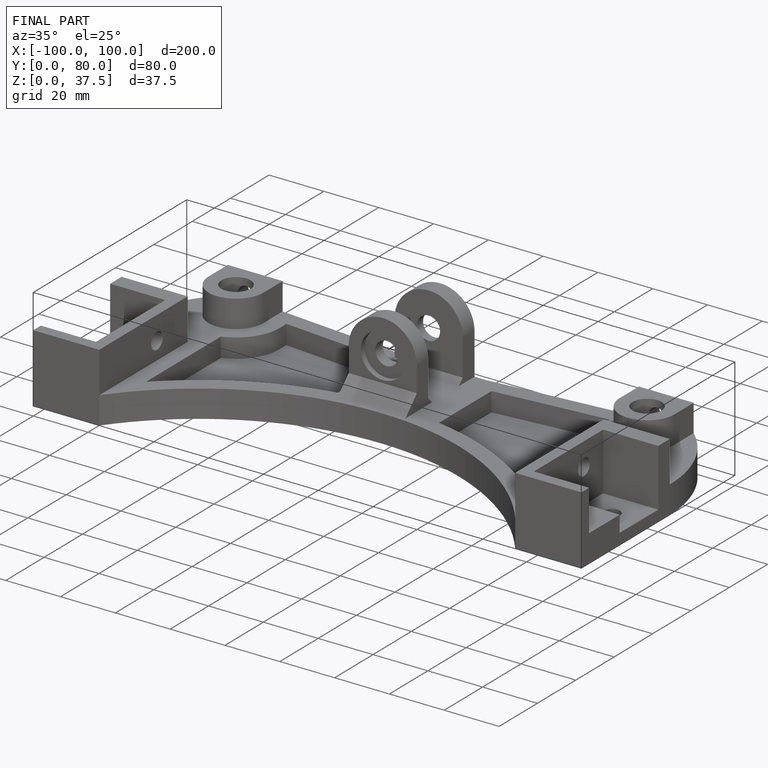
[diagram: finished part — iso view with bounding-box wireframe]
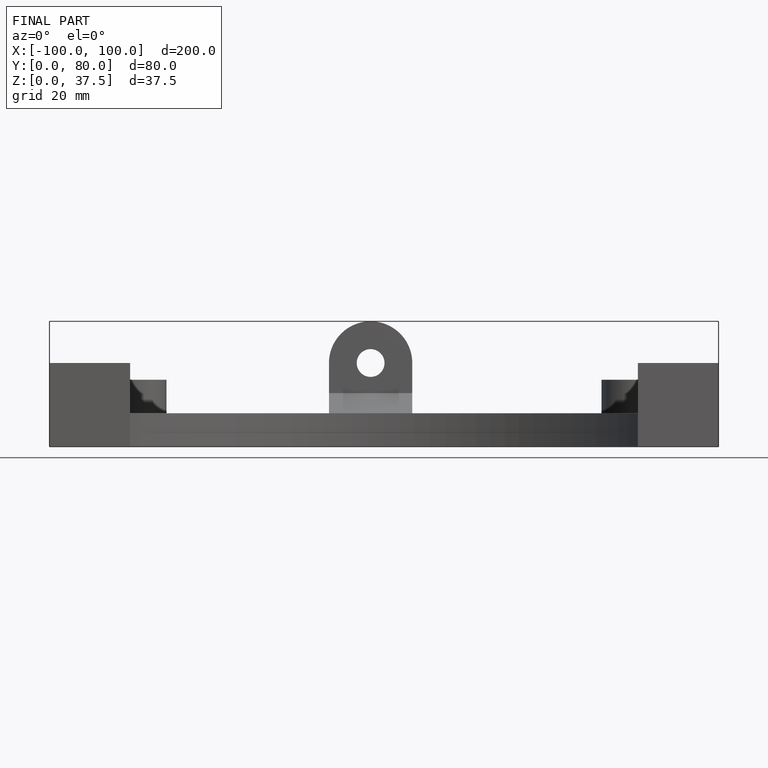
[diagram: finished part — front view with bounding-box wireframe]
